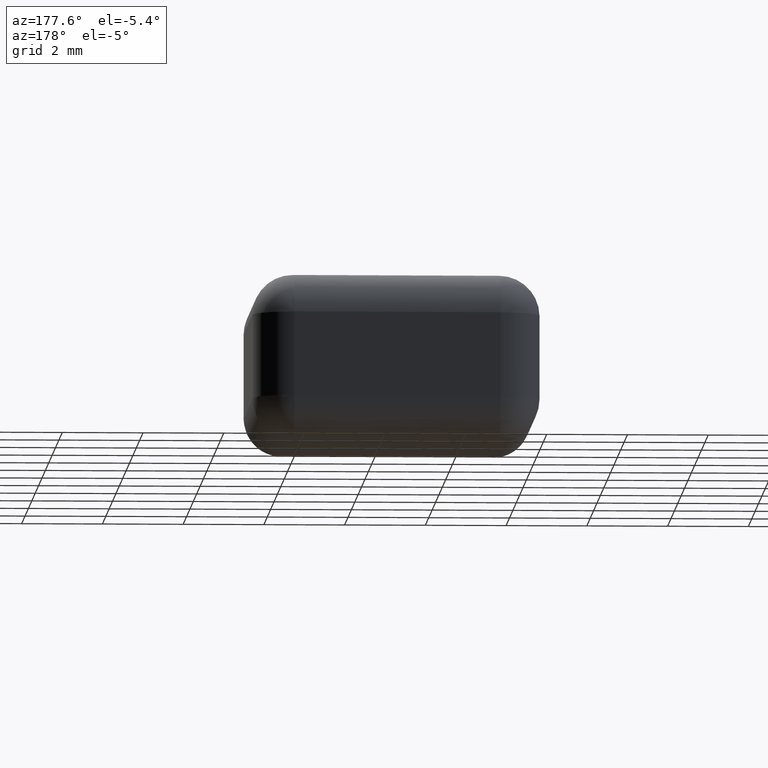
[diagram: clean part render]
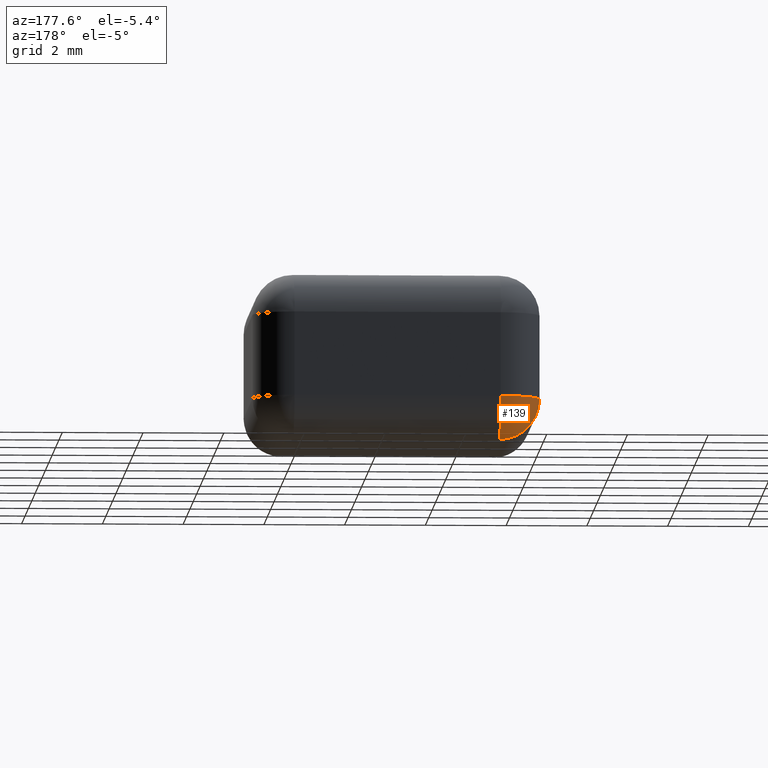
[diagram: same view with one face highlighted and labeled with its STEP entity id]
A machine part, auxiliary view. The second image highlights one B-rep face of the part: STEP entity #139.
In plain terms, the highlighted spherical surface has radius 1 mm.
Its self-contained STEP definition (entity closure, byte-faithful):
#139 = ADVANCED_FACE ( 'NONE', ( #6573 ), #5424, .T. ) ;
#589 = EDGE_CURVE ( 'NONE', #2073, #1336, #5674, .T. ) ;
#644 = ORIENTED_EDGE ( 'NONE', *, *, #589, .F. ) ;
#1163 = AXIS2_PLACEMENT_3D ( 'NONE', #1689, #2283, #6385 ) ;
#1336 = VERTEX_POINT ( 'NONE', #2024 ) ;
#1689 = CARTESIAN_POINT ( 'NONE',  ( 1.000000000000000000, 5.733170000000000300, 1.000000000000000000 ) ) ;
#1739 = CARTESIAN_POINT ( 'NONE',  ( 1.000000000000000000, 5.733170000000000300, 1.000000000000000000 ) ) ;
#1836 = VERTEX_POINT ( 'NONE', #4415 ) ;
#1907 = CARTESIAN_POINT ( 'NONE',  ( 1.000000000000000000, 5.733170000000000300, 1.000000000000000000 ) ) ;
#2024 = CARTESIAN_POINT ( 'NONE',  ( 0.0000000000000000000, 5.733170000000000300, 1.000000000000000000 ) ) ;
#2073 = VERTEX_POINT ( 'NONE', #2648 ) ;
#2283 = DIRECTION ( 'NONE',  ( 0.0000000000000000000, 1.000000000000000000, 0.0000000000000000000 ) ) ;
#2340 = ORIENTED_EDGE ( 'NONE', *, *, #4038, .T. ) ;
#2372 = AXIS2_PLACEMENT_3D ( 'NONE', #5552, #5083, #2548 ) ;
#2548 = DIRECTION ( 'NONE',  ( -1.000000000000000000, 0.0000000000000000000, 0.0000000000000000000 ) ) ;
#2648 = CARTESIAN_POINT ( 'NONE',  ( 1.000000000000000000, 6.733170000000000300, 1.000000000000000000 ) ) ;
#2736 = DIRECTION ( 'NONE',  ( 0.0000000000000000000, 0.0000000000000000000, 1.000000000000000000 ) ) ;
#3016 = EDGE_CURVE ( 'NONE', #1836, #2073, #4323, .T. ) ;
#3812 = DIRECTION ( 'NONE',  ( 0.0000000000000000000, 1.000000000000000000, 0.0000000000000000000 ) ) ;
#4038 = EDGE_CURVE ( 'NONE', #1836, #1336, #6643, .T. ) ;
#4323 = CIRCLE ( 'NONE', #4357, 1.000000000000000000 ) ;
#4357 = AXIS2_PLACEMENT_3D ( 'NONE', #1907, #4446, #5997 ) ;
#4415 = CARTESIAN_POINT ( 'NONE',  ( 1.000000000000000000, 5.733170000000000300, 0.0000000000000000000 ) ) ;
#4446 = DIRECTION ( 'NONE',  ( 1.000000000000000000, -0.0000000000000000000, 0.0000000000000000000 ) ) ;
#5016 = AXIS2_PLACEMENT_3D ( 'NONE', #1739, #3812, #2736 ) ;
#5083 = DIRECTION ( 'NONE',  ( -0.0000000000000000000, -0.0000000000000000000, 1.000000000000000000 ) ) ;
#5424 = SPHERICAL_SURFACE ( 'NONE', #1163, 1.000000000000000000 ) ;
#5552 = CARTESIAN_POINT ( 'NONE',  ( 1.000000000000000000, 5.733170000000000300, 1.000000000000000000 ) ) ;
#5674 = CIRCLE ( 'NONE', #2372, 1.000000000000000000 ) ;
#5997 = DIRECTION ( 'NONE',  ( 0.0000000000000000000, 0.0000000000000000000, -1.000000000000000000 ) ) ;
#6270 = EDGE_LOOP ( 'NONE', ( #2340, #644, #6422 ) ) ;
#6385 = DIRECTION ( 'NONE',  ( 1.000000000000000000, 0.0000000000000000000, 0.0000000000000000000 ) ) ;
#6422 = ORIENTED_EDGE ( 'NONE', *, *, #3016, .F. ) ;
#6573 = FACE_OUTER_BOUND ( 'NONE', #6270, .T. ) ;
#6643 = CIRCLE ( 'NONE', #5016, 1.000000000000000000 ) ;